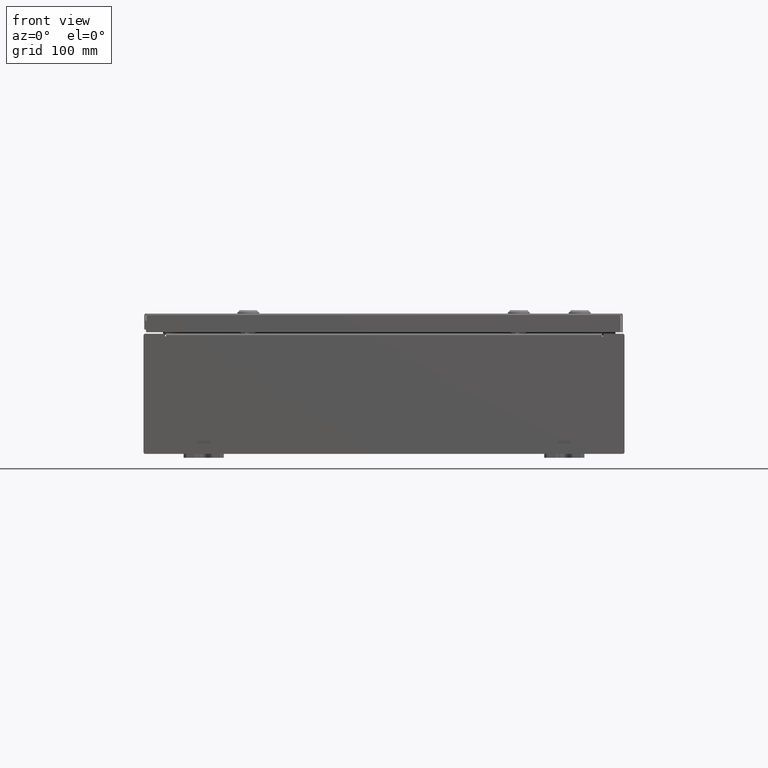
[diagram: clean part render]
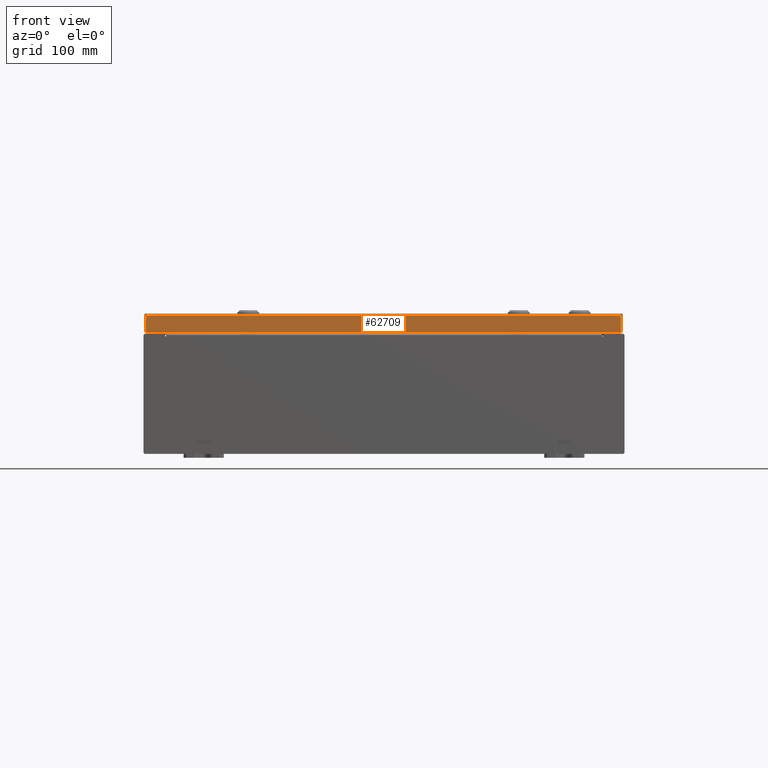
[diagram: same view with one face highlighted and labeled with its STEP entity id]
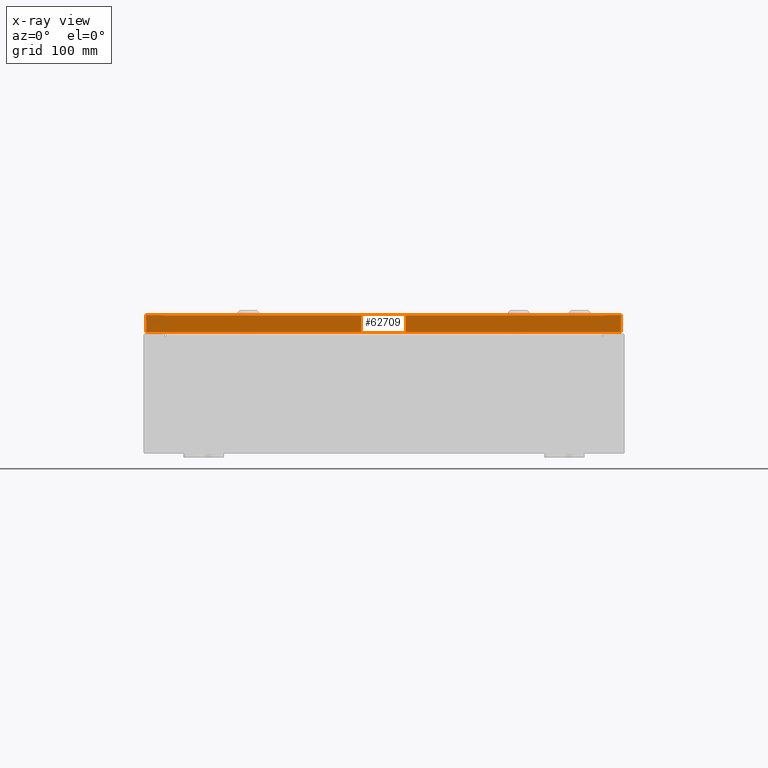
[diagram: x-ray of the same camera — body ghosted, the highlighted face saturated]
A machine part, front view. The second image highlights one B-rep face of the part: STEP entity #62709.
The next image is the same camera in x-ray: the body ghosted, the highlighted face saturated — about 0% of this face is hidden behind the body in this view.
In plain terms, the highlighted planar face has unit normal (-0, 1, -0).
Its self-contained STEP definition (entity closure, byte-faithful):
#1721 = EDGE_CURVE ( 'NONE', #36908, #38571, #12170, .T. ) ;
#3480 = ORIENTED_EDGE ( 'NONE', *, *, #37751, .T. ) ;
#4677 = DIRECTION ( 'NONE',  ( -0.0000000000000000000, -2.532419924601866100E-015, -1.000000000000000000 ) ) ;
#6546 = ORIENTED_EDGE ( 'NONE', *, *, #16642, .F. ) ;
#7408 = VERTEX_POINT ( 'NONE', #25335 ) ;
#12170 = LINE ( 'NONE', #56538, #36702 ) ;
#12879 = DIRECTION ( 'NONE',  ( 0.0000000000000000000, -2.532419924601866100E-015, -1.000000000000000000 ) ) ;
#15540 = EDGE_LOOP ( 'NONE', ( #38685, #3480, #6546, #54130 ) ) ;
#16642 = EDGE_CURVE ( 'NONE', #51891, #7408, #34263, .T. ) ;
#17555 = PLANE ( 'NONE',  #43280 ) ;
#17985 = CARTESIAN_POINT ( 'NONE',  ( 11.84865786437627100, -11.93750000000000000, -0.08770000000000008300 ) ) ;
#21670 = LINE ( 'NONE', #29156, #59164 ) ;
#22498 = DIRECTION ( 'NONE',  ( -3.187436615352006200E-031, 1.000000000000000000, -2.532419924601866100E-015 ) ) ;
#23881 = VECTOR ( 'NONE', #12879, 39.37007874015748100 ) ;
#25335 = CARTESIAN_POINT ( 'NONE',  ( -11.84865786437626800, -11.93750000000000200, -0.9376999999999967600 ) ) ;
#27485 = CARTESIAN_POINT ( 'NONE',  ( -11.84865786437626600, -11.93750000000000000, 3.049157650594635900E-014 ) ) ;
#28940 = CARTESIAN_POINT ( 'NONE',  ( 11.93750000000000000, -11.93750000000000200, -0.9376999999999997600 ) ) ;
#29156 = CARTESIAN_POINT ( 'NONE',  ( 11.84865786437626900, -11.93750000000000000, -0.07469999999999980800 ) ) ;
#34263 = LINE ( 'NONE', #28940, #47327 ) ;
#36371 = EDGE_CURVE ( 'NONE', #38571, #51891, #21670, .T. ) ;
#36702 = VECTOR ( 'NONE', #46892, 39.37007874015748100 ) ;
#36908 = VERTEX_POINT ( 'NONE', #62011 ) ;
#37751 = EDGE_CURVE ( 'NONE', #36908, #7408, #49901, .T. ) ;
#38571 = VERTEX_POINT ( 'NONE', #17985 ) ;
#38685 = ORIENTED_EDGE ( 'NONE', *, *, #1721, .F. ) ;
#43280 = AXIS2_PLACEMENT_3D ( 'NONE', #51826, #22498, #56748 ) ;
#46892 = DIRECTION ( 'NONE',  ( 1.000000000000000000, 3.187436615352006600E-031, -7.980458346197363700E-046 ) ) ;
#47327 = VECTOR ( 'NONE', #53549, 39.37007874015748100 ) ;
#48449 = FACE_OUTER_BOUND ( 'NONE', #15540, .T. ) ;
#49901 = LINE ( 'NONE', #27485, #23881 ) ;
#50627 = CARTESIAN_POINT ( 'NONE',  ( 11.84865786437626900, -11.93750000000000200, -0.9376999999999997600 ) ) ;
#51826 = CARTESIAN_POINT ( 'NONE',  ( 3.805002459576457300E-030, -11.93750000000000000, 3.049157650594635900E-014 ) ) ;
#51891 = VERTEX_POINT ( 'NONE', #50627 ) ;
#53549 = DIRECTION ( 'NONE',  ( -1.000000000000000000, 4.379057701015054300E-047, 1.258652478756310100E-016 ) ) ;
#54130 = ORIENTED_EDGE ( 'NONE', *, *, #36371, .F. ) ;
#56538 = CARTESIAN_POINT ( 'NONE',  ( 11.93750000000000000, -11.93750000000000000, -0.08770000000000008300 ) ) ;
#56748 = DIRECTION ( 'NONE',  ( 0.0000000000000000000, 2.532419924601866100E-015, 1.000000000000000000 ) ) ;
#59164 = VECTOR ( 'NONE', #4677, 39.37007874015748100 ) ;
#62011 = CARTESIAN_POINT ( 'NONE',  ( -11.84865786437626800, -11.93750000000000000, -0.08770000000000008300 ) ) ;
#62709 = ADVANCED_FACE ( 'NONE', ( #48449 ), #17555, .F. ) ;